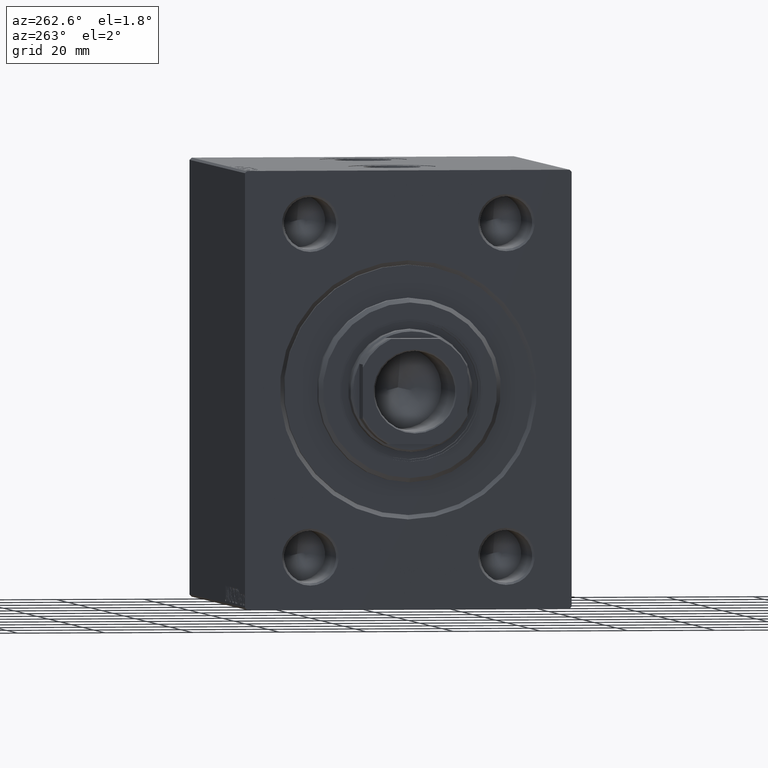
[diagram: clean part render]
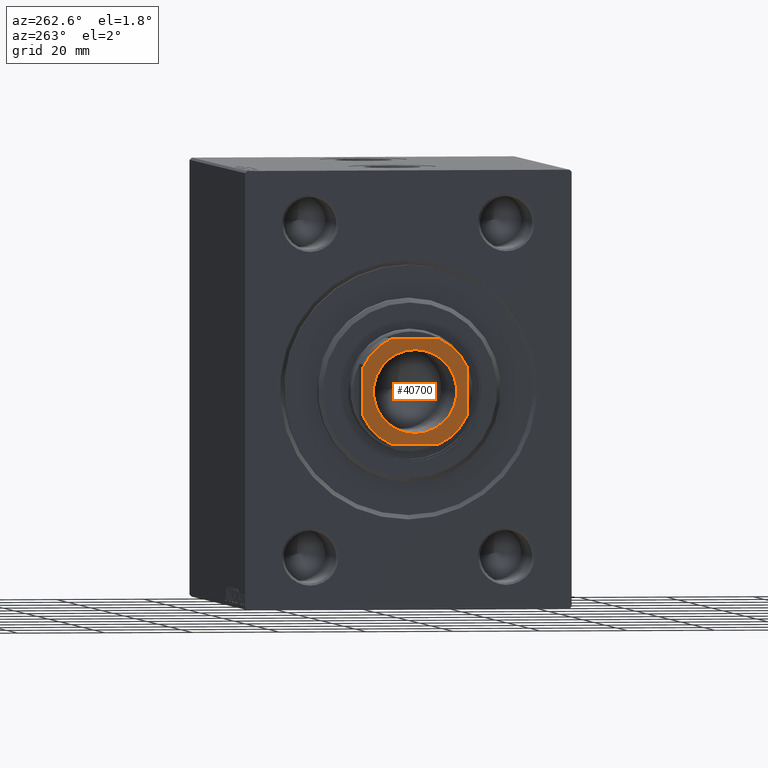
[diagram: same view with one face highlighted and labeled with its STEP entity id]
A machine part, auxiliary view. The second image highlights one B-rep face of the part: STEP entity #40700.
In plain terms, the highlighted planar face has unit normal (-1, 0, 0).
Its self-contained STEP definition (entity closure, byte-faithful):
#69 = DIRECTION ( 'NONE',  ( 2.168404344971008868E-16, -1.000000000000000000, 0.000000000000000000 ) ) ;
#138 = PLANE ( 'NONE',  #16715 ) ;
#282 = EDGE_CURVE ( 'NONE', #27097, #16219, #42573, .T. ) ;
#1263 = DIRECTION ( 'NONE',  ( -2.168404344971008868E-16, 1.000000000000000000, -0.000000000000000000 ) ) ;
#1289 = CARTESIAN_POINT ( 'NONE',  ( -5.499090833947052559, -12.00000000000000355, 96.00000000000000000 ) ) ;
#1417 = ORIENTED_EDGE ( 'NONE', *, *, #33249, .T. ) ;
#1952 = DIRECTION ( 'NONE',  ( 0.000000000000000000, -0.000000000000000000, -1.000000000000000000 ) ) ;
#3210 = EDGE_LOOP ( 'NONE', ( #9262, #38487, #6016, #35423, #34098, #1417, #25305, #16518 ) ) ;
#3314 = DIRECTION ( 'NONE',  ( 1.000000000000000000, 0.000000000000000000, 0.000000000000000000 ) ) ;
#3422 = CARTESIAN_POINT ( 'NONE',  ( 12.00000000000000000, -5.499090833947034795, 96.00000000000000000 ) ) ;
#3777 = EDGE_LOOP ( 'NONE', ( #37107, #15989 ) ) ;
#4524 = CARTESIAN_POINT ( 'NONE',  ( 0.000000000000000000, 0.000000000000000000, 96.00000000000000000 ) ) ;
#4794 = DIRECTION ( 'NONE',  ( 1.000000000000000000, 0.000000000000000000, 0.000000000000000000 ) ) ;
#4800 = CIRCLE ( 'NONE', #18464, 13.20000000000002238 ) ;
#5420 = DIRECTION ( 'NONE',  ( -1.000000000000000000, -0.000000000000000000, -0.000000000000000000 ) ) ;
#6016 = ORIENTED_EDGE ( 'NONE', *, *, #27002, .T. ) ;
#6233 = CARTESIAN_POINT ( 'NONE',  ( 5.499090833947041901, 11.99999999999999645, 96.00000000000000000 ) ) ;
#7784 = FACE_BOUND ( 'NONE', #3777, .T. ) ;
#7894 = DIRECTION ( 'NONE',  ( 0.000000000000000000, -0.000000000000000000, -1.000000000000000000 ) ) ;
#8229 = LINE ( 'NONE', #31411, #16675 ) ;
#8530 = VERTEX_POINT ( 'NONE', #6233 ) ;
#9262 = ORIENTED_EDGE ( 'NONE', *, *, #16728, .T. ) ;
#9692 = VECTOR ( 'NONE', #5420, 1000.000000000000000 ) ;
#9794 = VERTEX_POINT ( 'NONE', #16641 ) ;
#10177 = CARTESIAN_POINT ( 'NONE',  ( 0.000000000000000000, 0.000000000000000000, 96.00000000000000000 ) ) ;
#12184 = VERTEX_POINT ( 'NONE', #1289 ) ;
#12424 = CARTESIAN_POINT ( 'NONE',  ( 0.000000000000000000, 0.000000000000000000, 96.00000000000000000 ) ) ;
#13261 = DIRECTION ( 'NONE',  ( 1.000000000000000000, 0.000000000000000000, 0.000000000000000000 ) ) ;
#13379 = CARTESIAN_POINT ( 'NONE',  ( -12.00000000000000355, 11.99999999999999645, 96.00000000000000000 ) ) ;
#14418 = EDGE_CURVE ( 'NONE', #9794, #28343, #44375, .T. ) ;
#14469 = EDGE_CURVE ( 'NONE', #18312, #9794, #30997, .T. ) ;
#14474 = VECTOR ( 'NONE', #69, 1000.000000000000000 ) ;
#14691 = CARTESIAN_POINT ( 'NONE',  ( 11.99999999999999645, 5.499090833947039236, 96.00000000000000000 ) ) ;
#15033 = CARTESIAN_POINT ( 'NONE',  ( -11.99999999999999822, -12.00000000000000355, 96.00000000000000000 ) ) ;
#15989 = ORIENTED_EDGE ( 'NONE', *, *, #282, .T. ) ;
#16035 = AXIS2_PLACEMENT_3D ( 'NONE', #10177, #1952, #43064 ) ;
#16219 = VERTEX_POINT ( 'NONE', #25033 ) ;
#16518 = ORIENTED_EDGE ( 'NONE', *, *, #36691, .T. ) ;
#16641 = CARTESIAN_POINT ( 'NONE',  ( -12.00000000000000178, 5.499090833947057000, 96.00000000000000000 ) ) ;
#16675 = VECTOR ( 'NONE', #1263, 1000.000000000000000 ) ;
#16715 = AXIS2_PLACEMENT_3D ( 'NONE', #30748, #21292, #3314 ) ;
#16728 = EDGE_CURVE ( 'NONE', #27780, #25612, #8229, .T. ) ;
#16983 = CARTESIAN_POINT ( 'NONE',  ( 0.000000000000000000, 0.000000000000000000, 96.00000000000000000 ) ) ;
#18312 = VERTEX_POINT ( 'NONE', #42571 ) ;
#18464 = AXIS2_PLACEMENT_3D ( 'NONE', #24260, #23824, #13261 ) ;
#19269 = AXIS2_PLACEMENT_3D ( 'NONE', #42129, #20794, #21014 ) ;
#20311 = VECTOR ( 'NONE', #39916, 1000.000000000000000 ) ;
#20794 = DIRECTION ( 'NONE',  ( -0.000000000000000000, 0.000000000000000000, 1.000000000000000000 ) ) ;
#21014 = DIRECTION ( 'NONE',  ( 1.000000000000000000, 0.000000000000000000, 0.000000000000000000 ) ) ;
#21292 = DIRECTION ( 'NONE',  ( -0.000000000000000000, 0.000000000000000000, 1.000000000000000000 ) ) ;
#22742 = LINE ( 'NONE', #36437, #9692 ) ;
#22916 = CARTESIAN_POINT ( 'NONE',  ( -12.00000000000000000, -5.499090833947057888, 96.00000000000000000 ) ) ;
#23824 = DIRECTION ( 'NONE',  ( -0.000000000000000000, 0.000000000000000000, 1.000000000000000000 ) ) ;
#24260 = CARTESIAN_POINT ( 'NONE',  ( 0.000000000000000000, 0.000000000000000000, 96.00000000000000000 ) ) ;
#25033 = CARTESIAN_POINT ( 'NONE',  ( 9.549999999999988276, 0.000000000000000000, 96.00000000000000000 ) ) ;
#25305 = ORIENTED_EDGE ( 'NONE', *, *, #39839, .T. ) ;
#25612 = VERTEX_POINT ( 'NONE', #14691 ) ;
#26147 = DIRECTION ( 'NONE',  ( -0.000000000000000000, 0.000000000000000000, 1.000000000000000000 ) ) ;
#27002 = EDGE_CURVE ( 'NONE', #8530, #18312, #22742, .T. ) ;
#27097 = VERTEX_POINT ( 'NONE', #31006 ) ;
#27442 = CIRCLE ( 'NONE', #34628, 13.20000000000000995 ) ;
#27780 = VERTEX_POINT ( 'NONE', #3422 ) ;
#28104 = AXIS2_PLACEMENT_3D ( 'NONE', #16983, #35592, #4794 ) ;
#28343 = VERTEX_POINT ( 'NONE', #22916 ) ;
#30748 = CARTESIAN_POINT ( 'NONE',  ( 0.000000000000000000, 0.000000000000000000, 96.00000000000000000 ) ) ;
#30960 = FACE_OUTER_BOUND ( 'NONE', #3210, .T. ) ;
#30997 = CIRCLE ( 'NONE', #28104, 13.20000000000002238 ) ;
#31006 = CARTESIAN_POINT ( 'NONE',  ( -9.549999999999988276, 1.169537693185720980E-15, 96.00000000000000000 ) ) ;
#31411 = CARTESIAN_POINT ( 'NONE',  ( 11.99999999999999645, 11.99999999999999645, 96.00000000000000000 ) ) ;
#31971 = DIRECTION ( 'NONE',  ( 1.000000000000000000, 0.000000000000000000, 0.000000000000000000 ) ) ;
#33249 = EDGE_CURVE ( 'NONE', #28343, #12184, #4800, .T. ) ;
#34098 = ORIENTED_EDGE ( 'NONE', *, *, #14418, .T. ) ;
#34628 = AXIS2_PLACEMENT_3D ( 'NONE', #12424, #26147, #38957 ) ;
#35423 = ORIENTED_EDGE ( 'NONE', *, *, #14469, .T. ) ;
#35592 = DIRECTION ( 'NONE',  ( -0.000000000000000000, 0.000000000000000000, 1.000000000000000000 ) ) ;
#35702 = CARTESIAN_POINT ( 'NONE',  ( 5.499090833947025914, -12.00000000000000355, 96.00000000000000000 ) ) ;
#36118 = CIRCLE ( 'NONE', #43992, 9.549999999999988276 ) ;
#36437 = CARTESIAN_POINT ( 'NONE',  ( -12.00000000000000355, 11.99999999999999645, 96.00000000000000000 ) ) ;
#36691 = EDGE_CURVE ( 'NONE', #39762, #27780, #38628, .T. ) ;
#36758 = LINE ( 'NONE', #15033, #20311 ) ;
#37107 = ORIENTED_EDGE ( 'NONE', *, *, #41052, .T. ) ;
#38487 = ORIENTED_EDGE ( 'NONE', *, *, #39225, .T. ) ;
#38628 = CIRCLE ( 'NONE', #19269, 13.20000000000000995 ) ;
#38957 = DIRECTION ( 'NONE',  ( 1.000000000000000000, 0.000000000000000000, 0.000000000000000000 ) ) ;
#39225 = EDGE_CURVE ( 'NONE', #25612, #8530, #27442, .T. ) ;
#39762 = VERTEX_POINT ( 'NONE', #35702 ) ;
#39839 = EDGE_CURVE ( 'NONE', #12184, #39762, #36758, .T. ) ;
#39916 = DIRECTION ( 'NONE',  ( 1.000000000000000000, 0.000000000000000000, 0.000000000000000000 ) ) ;
#40700 = ADVANCED_FACE ( 'NONE', ( #7784, #30960 ), #138, .T. ) ;
#41052 = EDGE_CURVE ( 'NONE', #16219, #27097, #36118, .T. ) ;
#42129 = CARTESIAN_POINT ( 'NONE',  ( 0.000000000000000000, 0.000000000000000000, 96.00000000000000000 ) ) ;
#42571 = CARTESIAN_POINT ( 'NONE',  ( -5.499090833947067658, 11.99999999999999645, 96.00000000000000000 ) ) ;
#42573 = CIRCLE ( 'NONE', #16035, 9.549999999999988276 ) ;
#43064 = DIRECTION ( 'NONE',  ( 1.000000000000000000, 0.000000000000000000, 0.000000000000000000 ) ) ;
#43992 = AXIS2_PLACEMENT_3D ( 'NONE', #4524, #7894, #31971 ) ;
#44375 = LINE ( 'NONE', #13379, #14474 ) ;